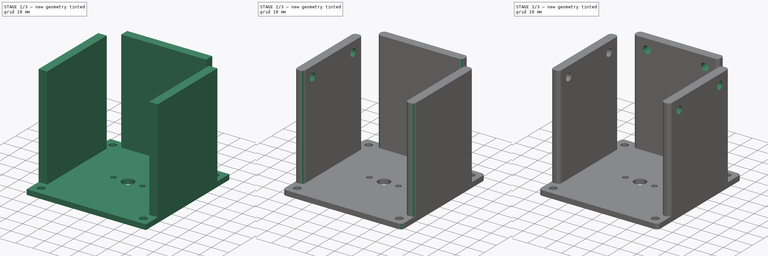
[diagram: build sequence overview — one tinted view per stage of 3, left to right]
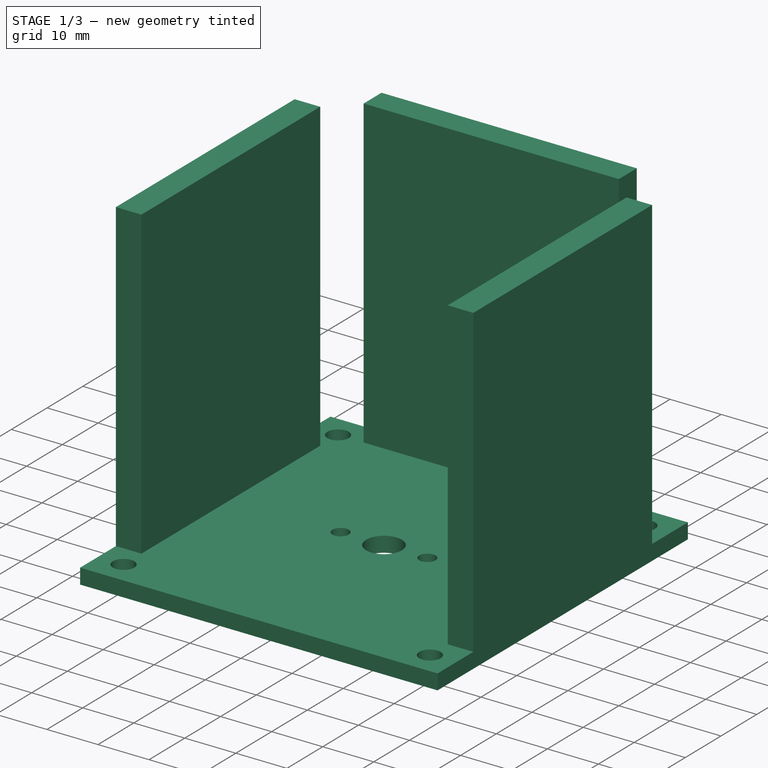
[diagram: stage 1 of 3 — iso view after this stage's code; geometry added in this stage tinted green]
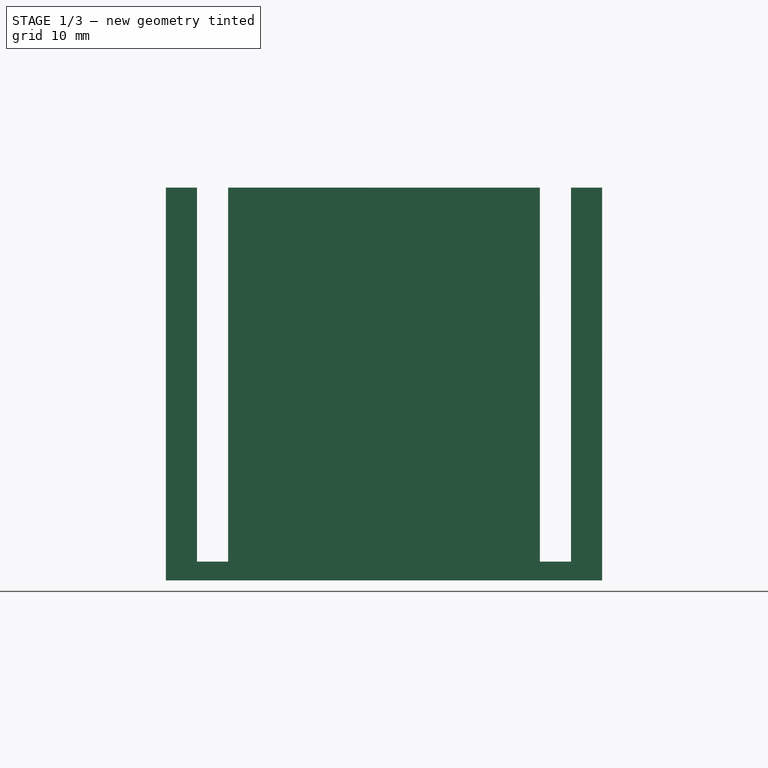
[diagram: stage 1 of 3 — front view after this stage's code; geometry added in this stage tinted green]
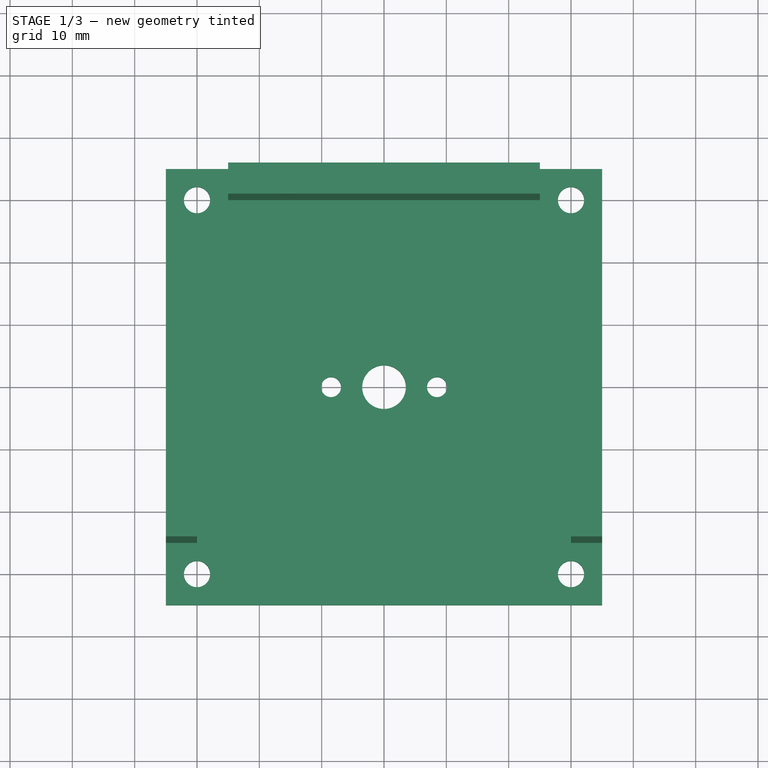
[diagram: stage 1 of 3 — top view after this stage's code; geometry added in this stage tinted green]
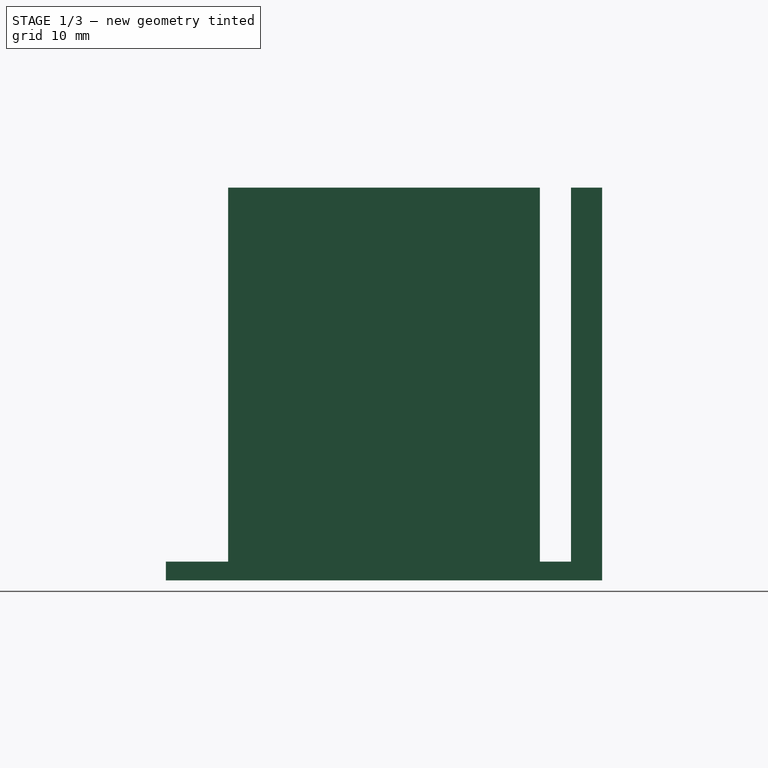
[diagram: stage 1 of 3 — right view after this stage's code; geometry added in this stage tinted green]
FCSTD DOCUMENT  (FreeCAD 0.16R6706 (Git))
Label: PCBMotorMount
License: All rights reserved
LicenseURL: http://en.wikipedia.org/wiki/All_rights_reserved
objects: Sketcher::SketchObject×5, PartDesign::Pocket×3, PartDesign::Pad×2, PartDesign::Fillet×1
note: 16 computed .brp shape members not serialized (recipe doc carries the construction recipe); baked Part::Feature solids carry a one-line shape summary decoded from their .brp

FEATURE [Sketcher::SketchObject] Sketch002  label="MotorPcbMount"
  sketch-geometry (12):
    g0: Circle CenterX=0 CenterY=0 CenterZ=0 NormalX=0 NormalY=0 NormalZ=1 Radius=3.5
    g1: Circle [constr] CenterX=0 CenterY=0 CenterZ=0 NormalX=0 NormalY=0 NormalZ=1 Radius=8.5
    g2: Circle CenterX=-8.5 CenterY=0 CenterZ=0 NormalX=0 NormalY=0 NormalZ=1 Radius=1.6
    g3: Circle CenterX=8.5 CenterY=0 CenterZ=0 NormalX=0 NormalY=0 NormalZ=1 Radius=1.6
    g4: LineSegment StartX=-35 StartY=35 StartZ=0 EndX=35 EndY=35 EndZ=0
    g5: LineSegment StartX=35 StartY=35 StartZ=0 EndX=35 EndY=-35 EndZ=0
    g6: LineSegment StartX=-35 StartY=-35 StartZ=0 EndX=-35 EndY=35 EndZ=0
    g7: Circle CenterX=30 CenterY=30 CenterZ=0 NormalX=0 NormalY=0 NormalZ=1 Radius=2.5
    g8: Circle CenterX=-30 CenterY=30 CenterZ=0 NormalX=0 NormalY=0 NormalZ=1 Radius=2.5
    g9: Circle CenterX=-30 CenterY=-30 CenterZ=0 NormalX=0 NormalY=0 NormalZ=1 Radius=2.5
    g10: Circle CenterX=30 CenterY=-30 CenterZ=0 NormalX=0 NormalY=0 NormalZ=1 Radius=2.5
    g11: LineSegment StartX=-35 StartY=-35 StartZ=0 EndX=29.3348 EndY=-35 EndZ=0
  constraints (35):
    c: Coincident(g0,g-1)
    c: Radius(g0) = 3.5
    c: Coincident(g1,g-1)
    c: Radius(g1) = 8.5
    c: Radius(g2) = 1.6
    c: Radius(g3) = 1.6
    c: Coincident(g4,g5)
    c: Coincident(g6,g4)
    c: Horizontal(g4)
    c: Vertical(g5)
    c: Vertical(g6)
    c: Distance(g5) = 70
    c: Distance(g4) = 70
    c: Distance(g3,g6) = 35
    c: DistanceX(g-2,g7) = 30
    c: DistanceY(g-1,g7) = 30
    c: Radius(g7) = 2.5
    c: Radius(g8) = 2.5
    c: DistanceX(g-2,g8) = -30
    c: DistanceY(g-1,g8) = 30
    c: Radius(g9) = 2.5
    c: DistanceX(g-2,g9) = -30
    c: DistanceY(g-1,g9) = -30
    c: Radius(g10) = 2.5
    c: DistanceX(g-2,g10) = 30
    c: DistanceY(g-1,g10) = -30
    c: Distance(g-1,g5) = 35
    c: Distance(g-1,g4) = 35
    c: Distance(g6) = 70
    c: PointOnObject(g2,g-1)
    c: PointOnObject(g2,g1)
    c: PointOnObject(g3,g1)
    c: PointOnObject(g3,g-1)
    c: Coincident(g11,g6)
    c: Horizontal(g11)
FEATURE [PartDesign::Pad] Pad
  Length = 3
  Length2 = 100
  Sketch = -> Sketch002
  Type = 0
FEATURE [Sketcher::SketchObject] Sketch
  Placement = pos=(0,0,3) rot=(0,0,1;0rad)
  Support = -> Pad [Face17]
  sketch-geometry (12):
    g0: LineSegment StartX=-25 StartY=35 StartZ=0 EndX=25 EndY=35 EndZ=0
    g1: LineSegment StartX=25 StartY=35 StartZ=0 EndX=25 EndY=30 EndZ=0
    g2: LineSegment StartX=25 StartY=30 StartZ=0 EndX=-25 EndY=30 EndZ=0
    g3: LineSegment StartX=-25 StartY=30 StartZ=0 EndX=-25 EndY=35 EndZ=0
    g4: LineSegment StartX=35 StartY=25 StartZ=0 EndX=30 EndY=25 EndZ=0
    g5: LineSegment StartX=30 StartY=25 StartZ=0 EndX=30 EndY=-25 EndZ=0
    g6: LineSegment StartX=30 StartY=-25 StartZ=0 EndX=35 EndY=-25 EndZ=0
    g7: LineSegment StartX=35 StartY=-25 StartZ=0 EndX=35 EndY=25 EndZ=0
    g8: LineSegment StartX=-35 StartY=25 StartZ=0 EndX=-30 EndY=25 EndZ=0
    g9: LineSegment StartX=-30 StartY=25 StartZ=0 EndX=-30 EndY=-25 EndZ=0
    g10: LineSegment StartX=-30 StartY=-25 StartZ=0 EndX=-35 EndY=-25 EndZ=0
    g11: LineSegment StartX=-35 StartY=-25 StartZ=0 EndX=-35 EndY=25 EndZ=0
  constraints (36):
    c: Coincident(g0,g1)
    c: Coincident(g1,g2)
    c: Coincident(g2,g3)
    c: Coincident(g3,g0)
    c: Horizontal(g0)
    c: Horizontal(g2)
    c: Vertical(g1)
    c: Vertical(g3)
    c: Coincident(g4,g5)
    c: Coincident(g5,g6)
    c: Coincident(g6,g7)
    c: Coincident(g7,g4)
    c: Horizontal(g4)
    c: Horizontal(g6)
    c: Vertical(g5)
    c: Vertical(g7)
    c: Distance(g3) = 5
    c: Distance(g4) = 5
    c: Distance(g2) = 50
    c: Distance(g5) = 50
    c: Symmetric(g4,g5,g-1)
    c: Symmetric(g2,g1,g-2)
    c: Distance(g-1,g2) = 30
    c: Distance(g-1,g5) = 30
    c: Coincident(g8,g9)
    c: Coincident(g9,g10)
    c: Coincident(g10,g11)
    c: Coincident(g11,g8)
    c: Horizontal(g8)
    c: Horizontal(g10)
    c: Vertical(g9)
    c: Vertical(g11)
    c: Equal(g5,g9)
    c: Equal(g4,g8)
    c: Symmetric(g8,g9,g-1)
    c: Distance(g-1,g9) = 30
FEATURE [PartDesign::Pad] Pad001  label="Main"
  Length = 60
  Length2 = 100
  Sketch = -> Sketch
  Type = 0
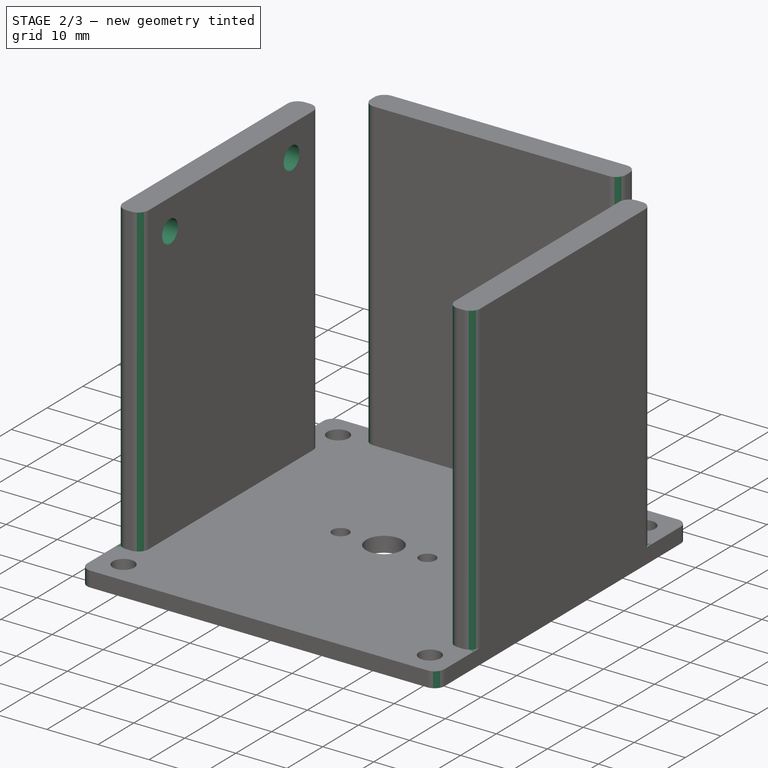
[diagram: stage 2 of 3 — iso view after this stage's code; geometry added in this stage tinted green]
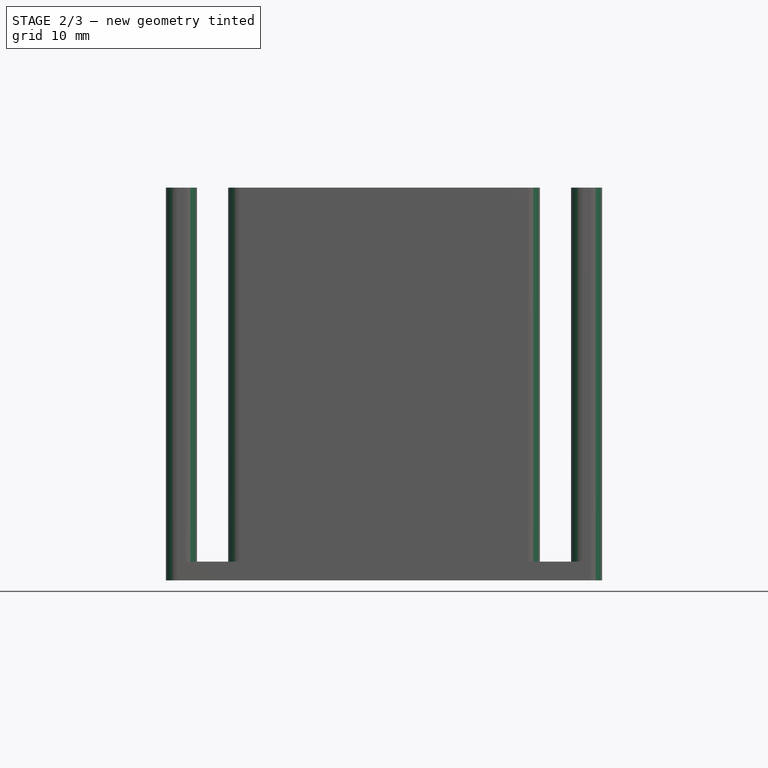
[diagram: stage 2 of 3 — front view after this stage's code; geometry added in this stage tinted green]
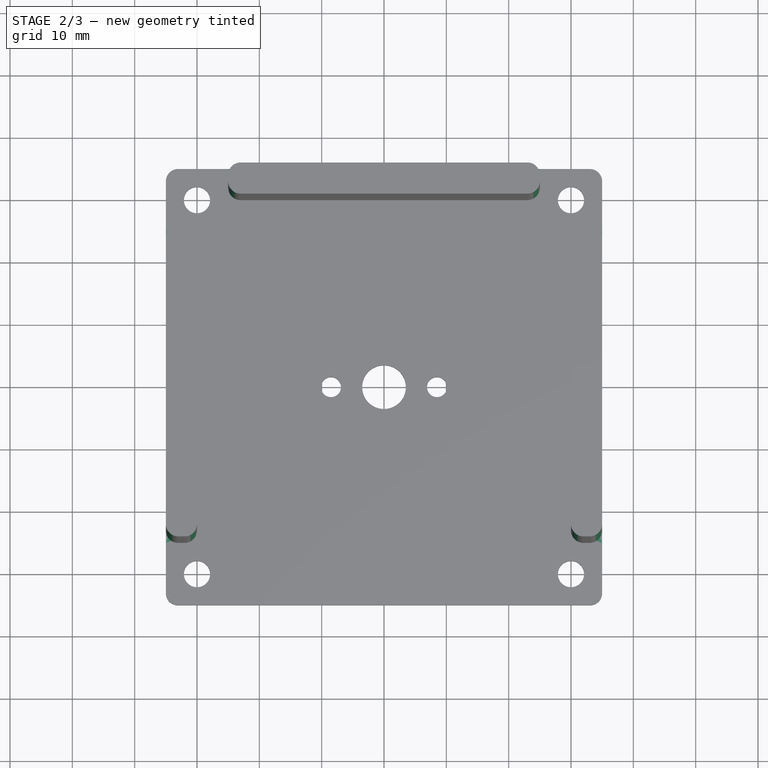
[diagram: stage 2 of 3 — top view after this stage's code; geometry added in this stage tinted green]
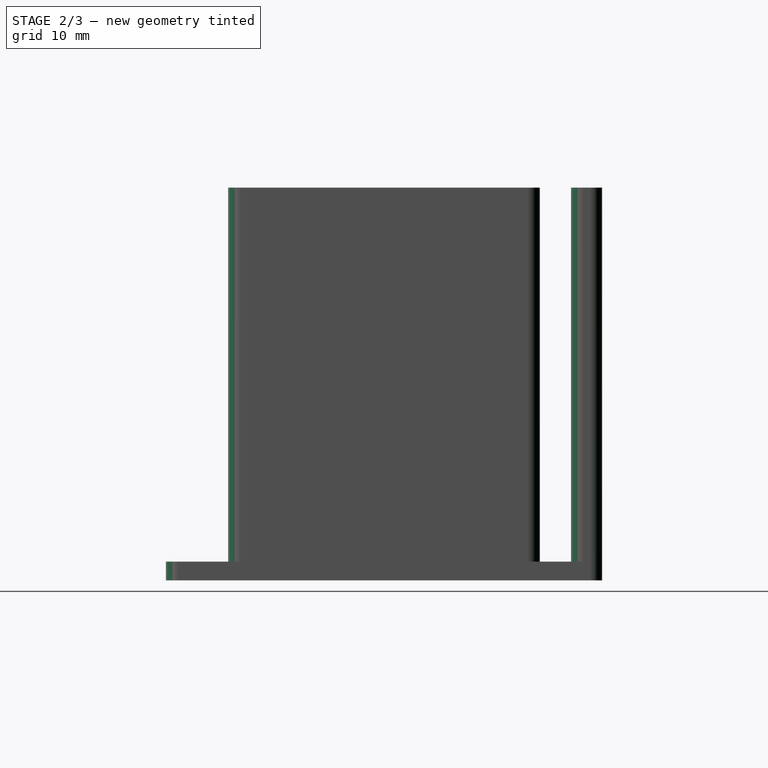
[diagram: stage 2 of 3 — right view after this stage's code; geometry added in this stage tinted green]
FEATURE [PartDesign::Fillet] Fillet
  Base = -> Pad001 [Edge21,Edge68,Edge55,Edge57,Edge70,Edge12,Edge58,Edge49,Edge51,Edge60,Edge14,Edge64,Edge54,Edge52,Edge66,Edge18]
  Radius = 2
FEATURE [Sketcher::SketchObject] Sketch003
  ExternalGeometry = -> [Fillet]
  Placement = pos=(-35,0,0) rot=(0.57735,-0.57735,-0.57735;2.0944rad)
  Support = -> Fillet [Face19]
  sketch-geometry (2):
    g0: Circle CenterX=-17 CenterY=57 CenterZ=0 NormalX=0 NormalY=0 NormalZ=1 Radius=2.2
    g1: Circle CenterX=17 CenterY=57 CenterZ=0 NormalX=0 NormalY=0 NormalZ=1 Radius=2.2
  constraints (4):
    c: Radius(g0) = 2.2
    c: Distance(g0,g-4) = 6
    c: Distance(g0,g-3) = 6
    c: Radius(g1) = 2.2
FEATURE [PartDesign::Pocket] Pocket
  Length = 10
  Sketch = -> Sketch003
  Type = 0
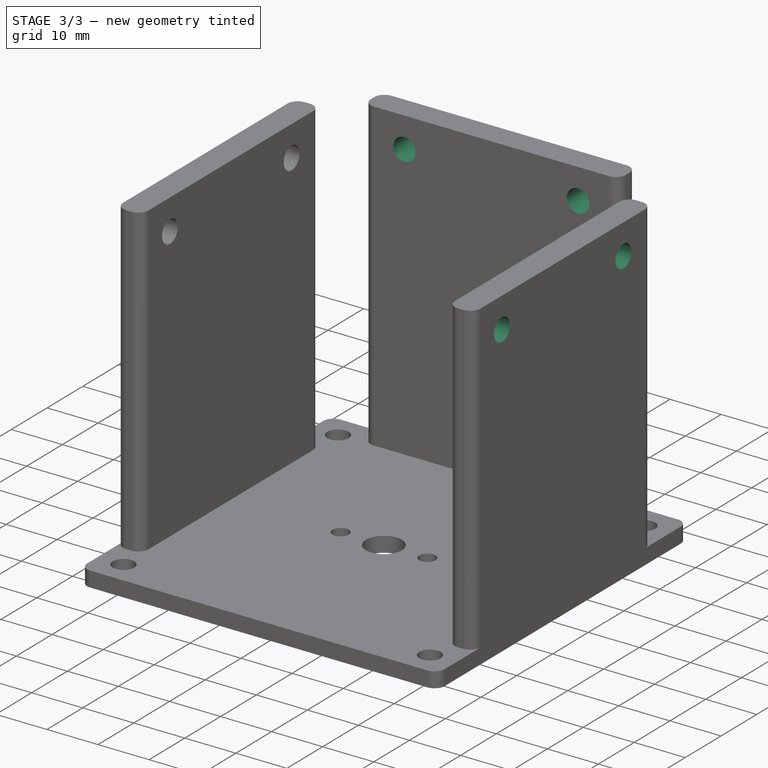
[diagram: stage 3 of 3 — iso view after this stage's code; geometry added in this stage tinted green]
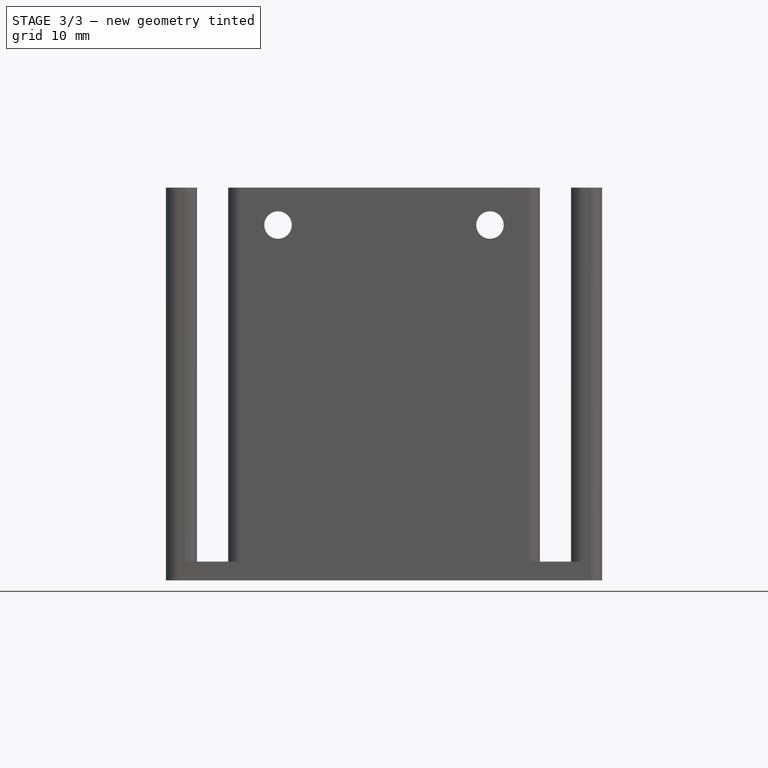
[diagram: stage 3 of 3 — front view after this stage's code; geometry added in this stage tinted green]
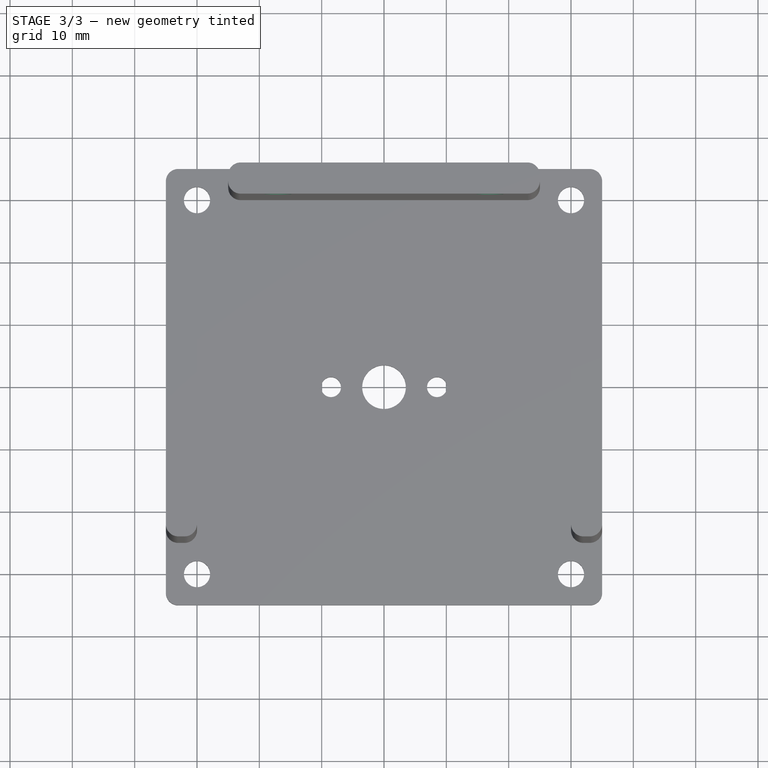
[diagram: stage 3 of 3 — top view after this stage's code; geometry added in this stage tinted green]
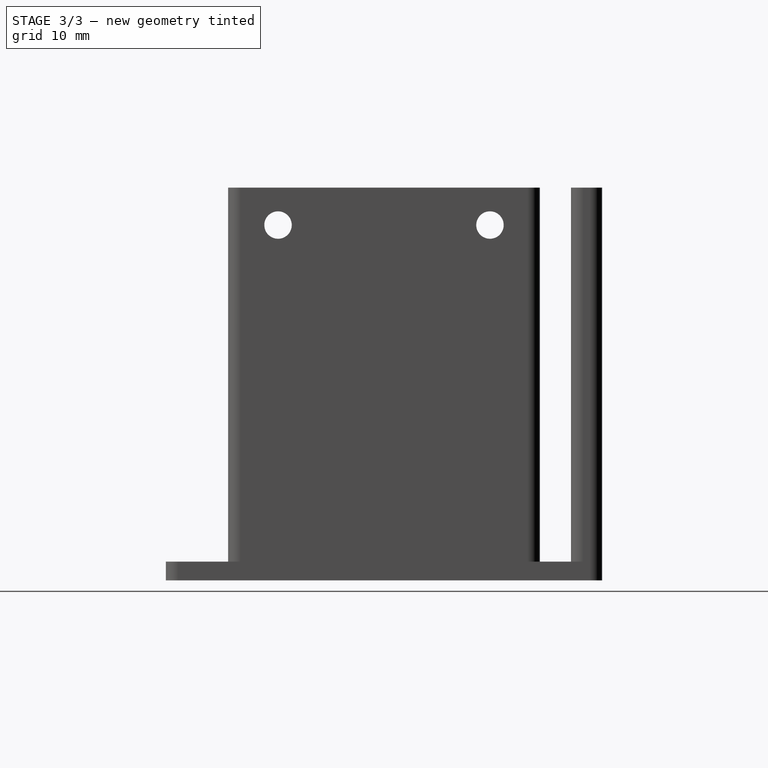
[diagram: stage 3 of 3 — right view after this stage's code; geometry added in this stage tinted green]
FEATURE [Sketcher::SketchObject] Sketch004
  ExternalGeometry = -> [Pocket]
  Placement = pos=(0,35,0) rot=(0,0.707107,0.707107;3.14159rad)
  Support = -> Pocket [Face18]
  sketch-geometry (2):
    g0: Circle CenterX=-17 CenterY=57 CenterZ=0 NormalX=0 NormalY=0 NormalZ=1 Radius=2.2
    g1: Circle CenterX=17 CenterY=57 CenterZ=0 NormalX=0 NormalY=0 NormalZ=1 Radius=2.2
  constraints (4):
    c: Radius(g0) = 2.2
    c: Distance(g0,g-4) = 6
    c: Distance(g0,g-3) = 6
    c: Radius(g1) = 2.2
FEATURE [PartDesign::Pocket] Pocket001
  Length = 5
  Sketch = -> Sketch004
  Type = 0
FEATURE [Sketcher::SketchObject] Sketch005
  ExternalGeometry = -> [Pocket001]
  Placement = pos=(35,0,0) rot=(0.57735,0.57735,0.57735;2.0944rad)
  Support = -> Pocket001 [Face20]
  sketch-geometry (2):
    g0: Circle CenterX=-17 CenterY=57 CenterZ=0 NormalX=0 NormalY=0 NormalZ=1 Radius=2.2
    g1: Circle CenterX=17 CenterY=57 CenterZ=0 NormalX=0 NormalY=0 NormalZ=1 Radius=2.2
  constraints (4):
    c: Radius(g0) = 2.2
    c: Distance(g0,g-4) = 6
    c: Distance(g0,g-3) = 6
    c: Radius(g1) = 2.2
FEATURE [PartDesign::Pocket] Pocket002
  Length = 5
  Sketch = -> Sketch005
  Type = 0
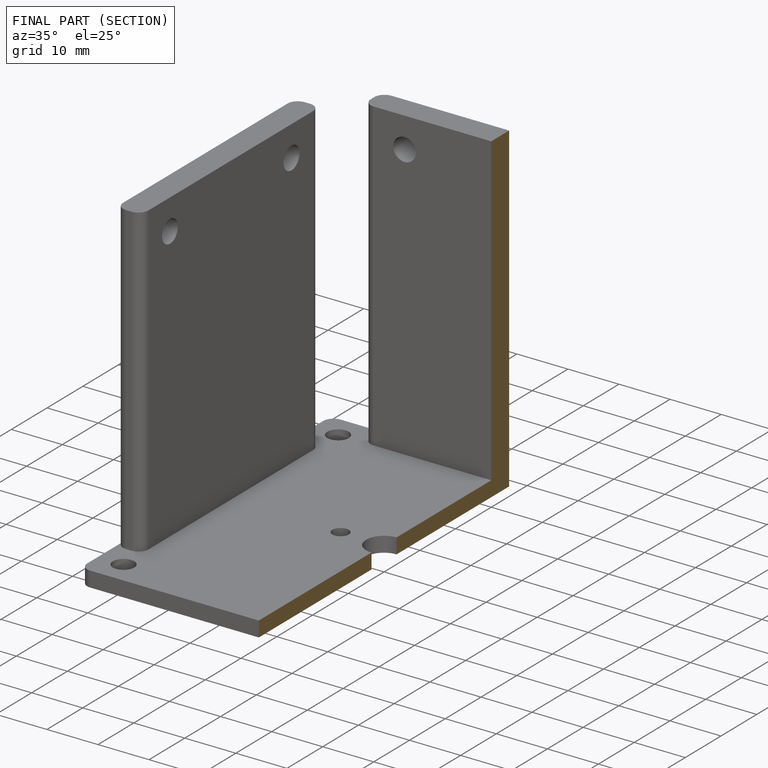
[diagram: finished part — half-section view (interior)]
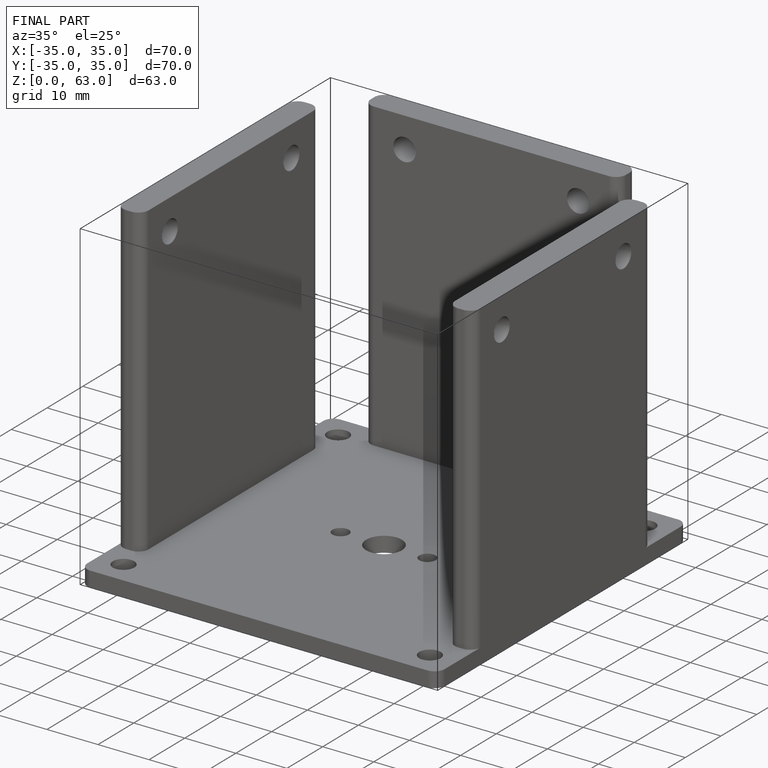
[diagram: finished part — iso view with bounding-box wireframe]
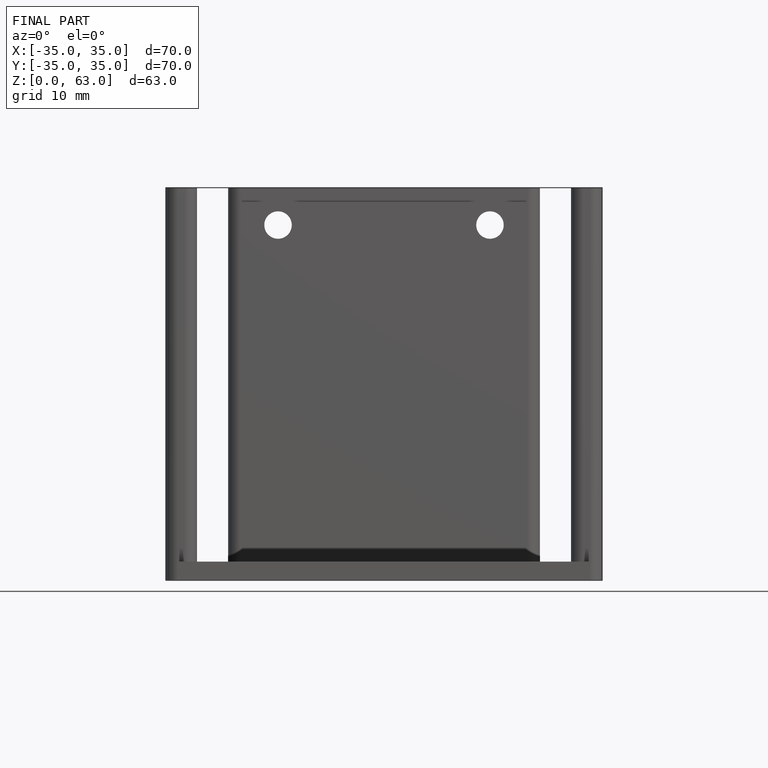
[diagram: finished part — front view with bounding-box wireframe]
